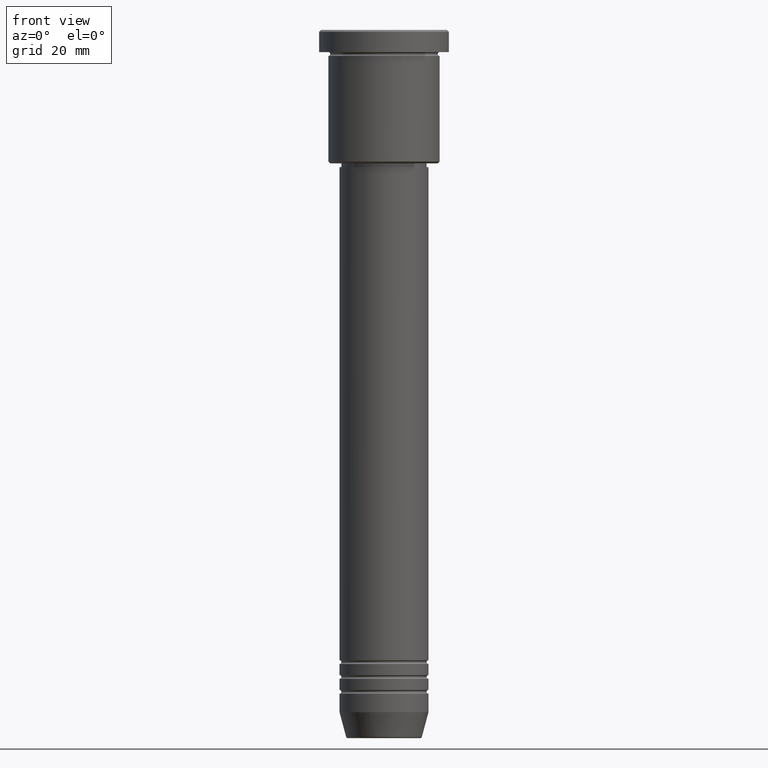
[diagram: clean part render]
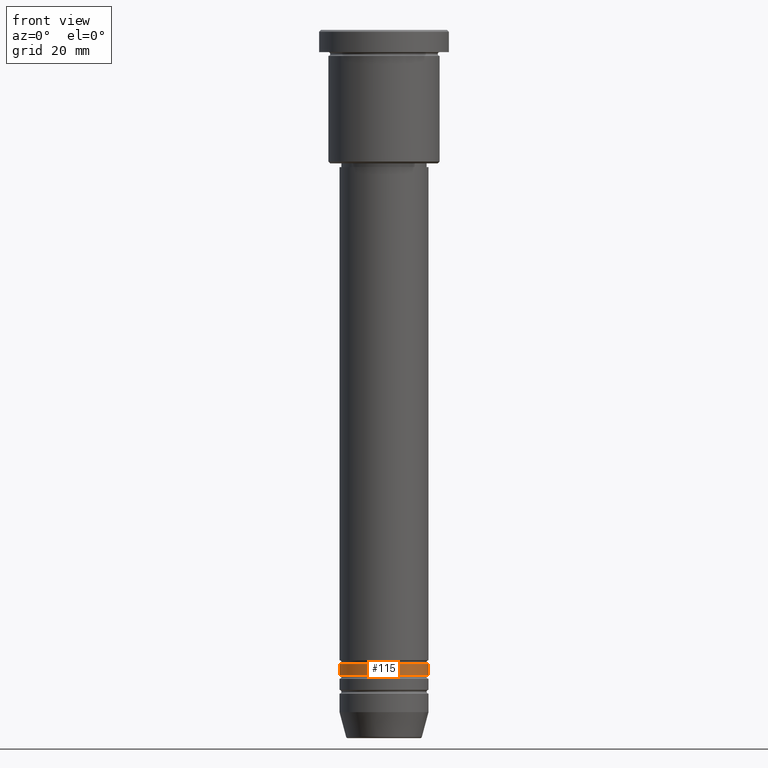
[diagram: same view with one face highlighted and labeled with its STEP entity id]
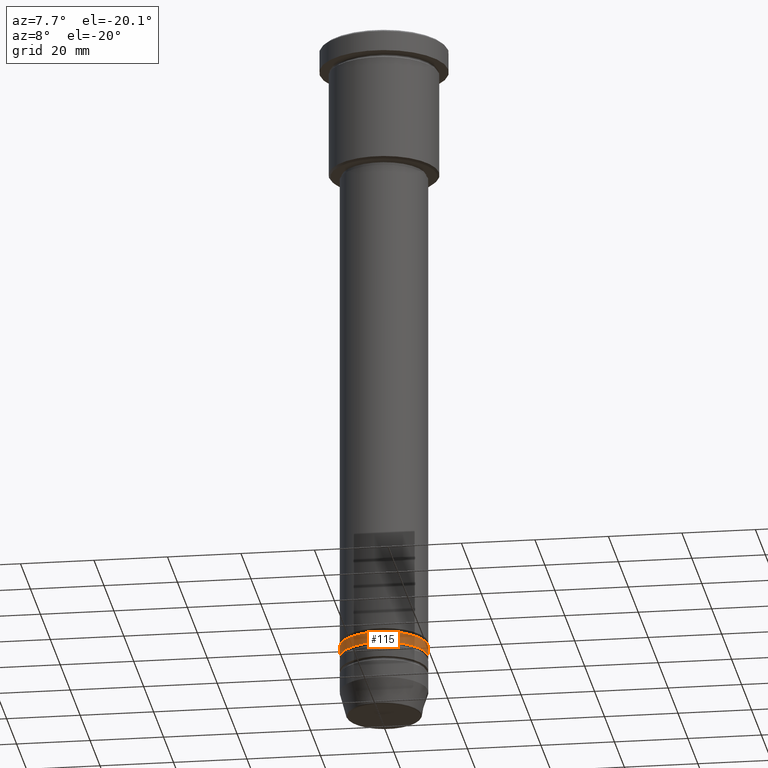
[diagram: same view with one face highlighted and labeled with its STEP entity id]
A machine part, front view. The second image highlights one B-rep face of the part: STEP entity #115.
A second angle (auxiliary view) of the same face is appended — the face is thin or edge-on in the first view.
In plain terms, the highlighted cylindrical surface (partial cylindrical patch) has radius 12 mm, axis along (-0, -0, 1).
Its self-contained STEP definition (entity closure, byte-faithful):
#36 = EDGE_LOOP ( 'NONE', ( #318, #947, #438, #126 ) ) ;
#52 = EDGE_CURVE ( 'NONE', #409, #616, #941, .T. ) ;
#57 = CARTESIAN_POINT ( 'NONE',  ( 0.000000000000000000, 0.000000000000000000, -173.9999999999999432 ) ) ;
#76 = AXIS2_PLACEMENT_3D ( 'NONE', #647, #906, #834 ) ;
#115 = ADVANCED_FACE ( 'NONE', ( #765 ), #859, .T. ) ;
#120 = CARTESIAN_POINT ( 'NONE',  ( 0.000000000000000000, 0.000000000000000000, 0.000000000000000000 ) ) ;
#126 = ORIENTED_EDGE ( 'NONE', *, *, #310, .F. ) ;
#136 = AXIS2_PLACEMENT_3D ( 'NONE', #57, #340, #265 ) ;
#161 = VECTOR ( 'NONE', #898, 1000.000000000000000 ) ;
#223 = CARTESIAN_POINT ( 'NONE',  ( -12.00000000000000178, 1.469576158976824144E-15, 0.000000000000000000 ) ) ;
#265 = DIRECTION ( 'NONE',  ( 1.000000000000000000, 0.000000000000000000, 0.000000000000000000 ) ) ;
#310 = EDGE_CURVE ( 'NONE', #616, #813, #1088, .T. ) ;
#318 = ORIENTED_EDGE ( 'NONE', *, *, #52, .F. ) ;
#323 = DIRECTION ( 'NONE',  ( 1.000000000000000000, 0.000000000000000000, 0.000000000000000000 ) ) ;
#340 = DIRECTION ( 'NONE',  ( -0.000000000000000000, -0.000000000000000000, 1.000000000000000000 ) ) ;
#363 = CARTESIAN_POINT ( 'NONE',  ( 12.00000000000000178, 0.000000000000000000, 0.000000000000000000 ) ) ;
#403 = VECTOR ( 'NONE', #579, 1000.000000000000000 ) ;
#409 = VERTEX_POINT ( 'NONE', #747 ) ;
#438 = ORIENTED_EDGE ( 'NONE', *, *, #762, .T. ) ;
#574 = VERTEX_POINT ( 'NONE', #866 ) ;
#579 = DIRECTION ( 'NONE',  ( -0.000000000000000000, -0.000000000000000000, 1.000000000000000000 ) ) ;
#616 = VERTEX_POINT ( 'NONE', #696 ) ;
#642 = EDGE_CURVE ( 'NONE', #409, #574, #1124, .T. ) ;
#647 = CARTESIAN_POINT ( 'NONE',  ( 0.000000000000000000, 0.000000000000000000, -170.9999999999999147 ) ) ;
#665 = DIRECTION ( 'NONE',  ( -0.000000000000000000, -0.000000000000000000, 1.000000000000000000 ) ) ;
#696 = CARTESIAN_POINT ( 'NONE',  ( -12.00000000000000000, 1.469576158976824144E-15, -170.9999999999999147 ) ) ;
#721 = CARTESIAN_POINT ( 'NONE',  ( 12.00000000000000000, 0.000000000000000000, -170.9999999999999147 ) ) ;
#747 = CARTESIAN_POINT ( 'NONE',  ( -12.00000000000000533, 1.469576158976824539E-15, -173.9999999999999432 ) ) ;
#758 = AXIS2_PLACEMENT_3D ( 'NONE', #120, #665, #323 ) ;
#762 = EDGE_CURVE ( 'NONE', #574, #813, #990, .T. ) ;
#765 = FACE_OUTER_BOUND ( 'NONE', #36, .T. ) ;
#813 = VERTEX_POINT ( 'NONE', #721 ) ;
#834 = DIRECTION ( 'NONE',  ( 1.000000000000000000, 0.000000000000000000, 0.000000000000000000 ) ) ;
#859 = CYLINDRICAL_SURFACE ( 'NONE', #758, 12.00000000000000178 ) ;
#866 = CARTESIAN_POINT ( 'NONE',  ( 12.00000000000000355, 0.000000000000000000, -173.9999999999999432 ) ) ;
#898 = DIRECTION ( 'NONE',  ( -0.000000000000000000, -0.000000000000000000, 1.000000000000000000 ) ) ;
#906 = DIRECTION ( 'NONE',  ( -0.000000000000000000, -0.000000000000000000, 1.000000000000000000 ) ) ;
#941 = LINE ( 'NONE', #223, #403 ) ;
#947 = ORIENTED_EDGE ( 'NONE', *, *, #642, .T. ) ;
#990 = LINE ( 'NONE', #363, #161 ) ;
#1088 = CIRCLE ( 'NONE', #76, 12.00000000000000000 ) ;
#1124 = CIRCLE ( 'NONE', #136, 12.00000000000000355 ) ;